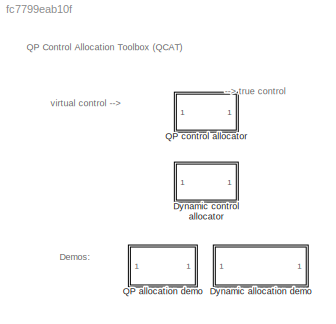
MODEL slx_fc7799eab10f
KIND library
CONFIG AbsTol = auto
CONFIG EnableMultiTasking = off
CONFIG FixedStep = auto
CONFIG MaxStep = auto
CONFIG MinStep = auto
CONFIG RelTol = 1e-3
CONFIG SampleTimeConstraint = Unconstrained
CONFIG Solver = VariableStepAuto
CONFIG SolverName = VariableStepAuto
CONFIG StartTime = 0.0
CONFIG StopTime = 10.0
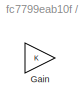
BLOCK [SubSystem] Dynamic allocation demo
  OpenFcn = open_system('dyn_alloc_demo')
  Ports = []
  RequestExecContextInheritance = off
BLOCK [Gain] Dynamic allocation demo/Gain
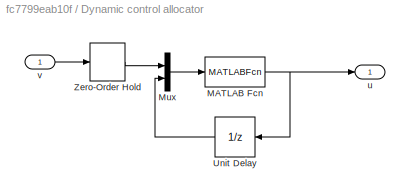
BLOCK [SubSystem] Dynamic control allocator
  Ports = [1, 1]
  RequestExecContextInheritance = off
BLOCK [MATLABFcn] Dynamic control allocator/MATLAB Fcn
  MATLABFcn = dyn_ca_sl(u,B,plim,rlim,T,Wv,W1,W2,S)
  OutputDimensions = size(B,2)
  Ports = [1, 1]
BLOCK [Mux] Dynamic control allocator/Mux
  DisplayOption = bar
  Inputs = 2
  Ports = [2, 1]
BLOCK [UnitDelay] Dynamic control allocator/Unit Delay
  SampleTime = T
BLOCK [ZeroOrderHold] Dynamic control allocator/Zero-Order Hold
  SampleTime = T
BLOCK [Outport] Dynamic control allocator/u
  IconDisplay = Port number
BLOCK [Inport] Dynamic control allocator/v
  IconDisplay = Port number
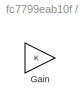
BLOCK [SubSystem] QP allocation demo
  OpenFcn = open_system('qp_alloc_demo')
  Ports = []
  RequestExecContextInheritance = off
BLOCK [Gain] QP allocation demo/Gain
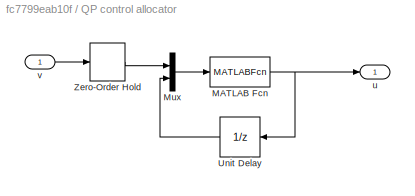
BLOCK [SubSystem] QP control allocator
  AncestorBlock = qcatlib/Dynamic control allocator
  Ports = [1, 1]
  RequestExecContextInheritance = off
BLOCK [MATLABFcn] QP control allocator/MATLAB Fcn
  MATLABFcn = qp_ca_sl(u,B,plim,rlim,T,Wv,Wu,ud,alg,imax,gam,tol)
  OutputDimensions = size(B,2)
  Ports = [1, 1]
BLOCK [Mux] QP control allocator/Mux
  DisplayOption = bar
  Inputs = 2
  Ports = [2, 1]
BLOCK [UnitDelay] QP control allocator/Unit Delay
  SampleTime = T
BLOCK [ZeroOrderHold] QP control allocator/Zero-Order Hold
  SampleTime = T
BLOCK [Outport] QP control allocator/u
  IconDisplay = Port number
BLOCK [Inport] QP control allocator/v
  IconDisplay = Port number
ANNOTATION (root): QP Control Allocation Toolbox (QCAT)
ANNOTATION (root): --> true control
ANNOTATION (root): Demos:
ANNOTATION (root): virtual control -->
NET Dynamic control allocator/MATLAB Fcn:1 -> Dynamic control allocator/Unit Delay:1, Dynamic control allocator/u:1
LINE Dynamic control allocator/Mux:1 -> Dynamic control allocator/MATLAB Fcn:1
LINE Dynamic control allocator/Unit Delay:1 -> Dynamic control allocator/Mux:2
LINE Dynamic control allocator/Zero-Order Hold:1 -> Dynamic control allocator/Mux:1
LINE Dynamic control allocator/v:1 -> Dynamic control allocator/Zero-Order Hold:1
note: NET lines group one-source signal fan-out (src -> all destinations, sorted); 1:1 wires keep LINE
